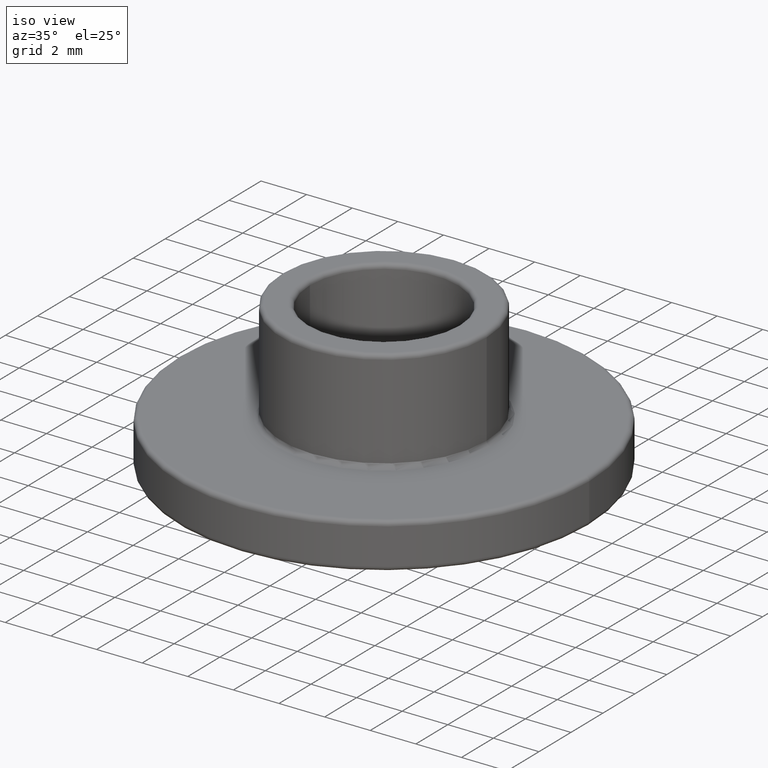
[diagram: clean part render]
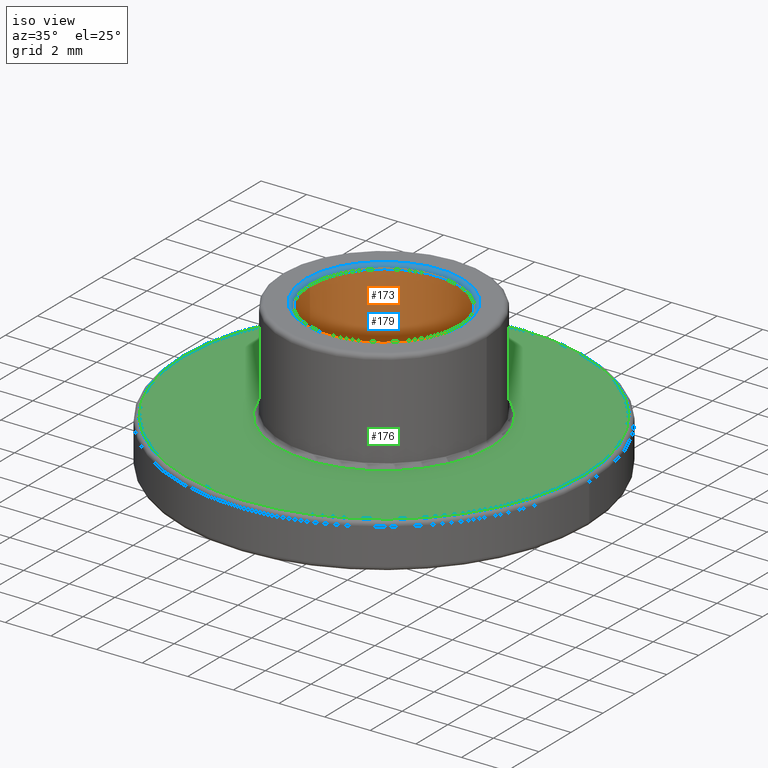
[diagram: same view with three faces highlighted in distinct colors, each labeled with its STEP entity id]
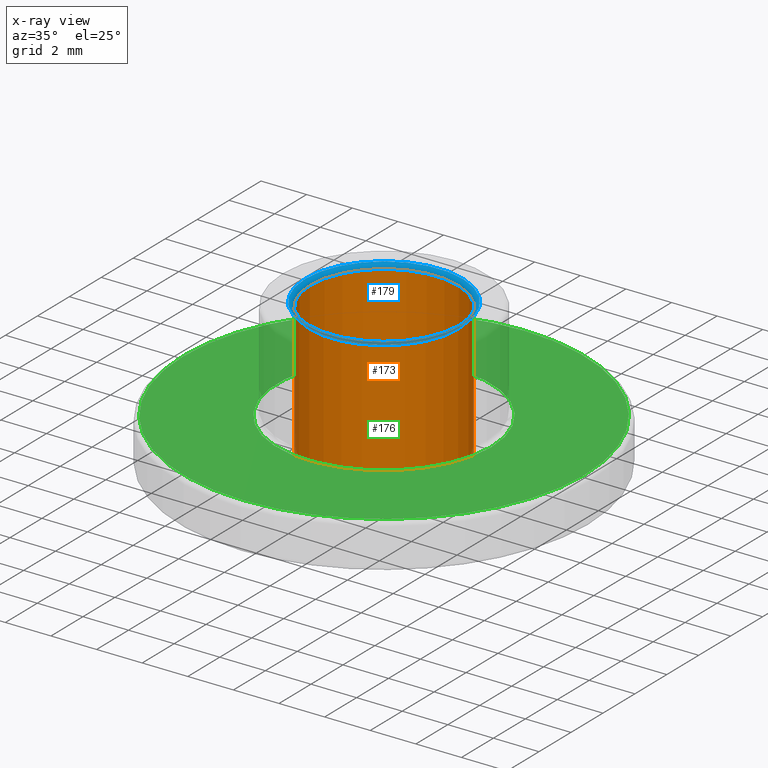
[diagram: x-ray of the same camera — body ghosted, the three highlighted faces saturated]
A machine part, iso view with three faces highlighted in distinct colors.
The next image is the same camera in x-ray (body ghosted, the three faces saturated) — at least one of them is partly hidden behind the body in this view.
Their STEP definitions:

[orange] entity #173 — the highlighted cylindrical surface (bore or boss wall) has radius 3.25 mm, axis along (0, 0, 1).
#15=LINE('',#322,#18);
#18=VECTOR('',#256,3.25);
#21=CYLINDRICAL_SURFACE('',#209,3.25);
#32=FACE_OUTER_BOUND('',#45,.T.);
#45=EDGE_LOOP('',(#123,#124,#125,#126,#127));
#59=CIRCLE('',#206,3.25);
#61=CIRCLE('',#210,3.25);
#62=CIRCLE('',#211,3.25);
#79=VERTEX_POINT('',#311);
#81=VERTEX_POINT('',#318);
#82=VERTEX_POINT('',#319);
#95=EDGE_CURVE('',#79,#79,#59,.T.);
#97=EDGE_CURVE('',#81,#82,#61,.T.);
#98=EDGE_CURVE('',#82,#81,#62,.T.);
#99=EDGE_CURVE('',#82,#79,#15,.T.);
#123=ORIENTED_EDGE('',*,*,#97,.F.);
#124=ORIENTED_EDGE('',*,*,#98,.F.);
#125=ORIENTED_EDGE('',*,*,#99,.T.);
#126=ORIENTED_EDGE('',*,*,#95,.F.);
#127=ORIENTED_EDGE('',*,*,#99,.F.);
#173=ADVANCED_FACE('',(#32),#21,.F.);
#206=AXIS2_PLACEMENT_3D('',#313,#244,#245);
#209=AXIS2_PLACEMENT_3D('',#317,#250,#251);
#210=AXIS2_PLACEMENT_3D('',#320,#252,#253);
#211=AXIS2_PLACEMENT_3D('',#321,#254,#255);
#244=DIRECTION('center_axis',(0.,0.,1.));
#245=DIRECTION('ref_axis',(1.,0.,0.));
#250=DIRECTION('center_axis',(0.,0.,1.));
#251=DIRECTION('ref_axis',(1.,0.,0.));
#252=DIRECTION('center_axis',(0.,0.,-1.));
#253=DIRECTION('ref_axis',(-1.,-1.22464679914735E-16,0.));
#254=DIRECTION('center_axis',(0.,0.,-1.));
#255=DIRECTION('ref_axis',(-1.,-1.22464679914735E-16,0.));
#256=DIRECTION('',(0.,0.,-1.));
#311=CARTESIAN_POINT('',(-3.25,-3.9801020972289E-16,-1.8));
#313=CARTESIAN_POINT('Origin',(0.,0.,-1.8));
#317=CARTESIAN_POINT('Origin',(0.,0.,-21.7726093108393));
#318=CARTESIAN_POINT('',(3.25,0.,4.3));
#319=CARTESIAN_POINT('',(-3.25,-3.9801020972289E-16,4.3));
#320=CARTESIAN_POINT('Origin',(0.,0.,4.3));
#321=CARTESIAN_POINT('Origin',(0.,0.,4.3));
#322=CARTESIAN_POINT('',(-3.25,-3.9801020972289E-16,-21.7726093108393));

[blue] entity #179 — the highlighted toroidal blend (fillet) surface has major radius 3.45 mm and minor (blend) radius 0.2 mm.
#38=FACE_OUTER_BOUND('',#52,.T.);
#52=EDGE_LOOP('',(#147,#148,#149,#150,#151));
#61=CIRCLE('',#210,3.25);
#62=CIRCLE('',#211,3.25);
#72=CIRCLE('',#227,3.45);
#73=CIRCLE('',#228,0.2);
#81=VERTEX_POINT('',#318);
#82=VERTEX_POINT('',#319);
#90=VERTEX_POINT('',#347);
#97=EDGE_CURVE('',#81,#82,#61,.T.);
#98=EDGE_CURVE('',#82,#81,#62,.T.);
#111=EDGE_CURVE('',#90,#90,#72,.T.);
#112=EDGE_CURVE('',#90,#81,#73,.T.);
#147=ORIENTED_EDGE('',*,*,#111,.T.);
#148=ORIENTED_EDGE('',*,*,#112,.T.);
#149=ORIENTED_EDGE('',*,*,#97,.T.);
#150=ORIENTED_EDGE('',*,*,#98,.T.);
#151=ORIENTED_EDGE('',*,*,#112,.F.);
#168=TOROIDAL_SURFACE('',#226,3.45,0.2);
#179=ADVANCED_FACE('',(#38),#168,.T.);
#210=AXIS2_PLACEMENT_3D('',#320,#252,#253);
#211=AXIS2_PLACEMENT_3D('',#321,#254,#255);
#226=AXIS2_PLACEMENT_3D('',#346,#287,#288);
#227=AXIS2_PLACEMENT_3D('',#348,#289,#290);
#228=AXIS2_PLACEMENT_3D('',#349,#291,#292);
#252=DIRECTION('center_axis',(0.,0.,-1.));
#253=DIRECTION('ref_axis',(-1.,-1.22464679914735E-16,0.));
#254=DIRECTION('center_axis',(0.,0.,-1.));
#255=DIRECTION('ref_axis',(-1.,-1.22464679914735E-16,0.));
#287=DIRECTION('center_axis',(0.,0.,-1.));
#288=DIRECTION('ref_axis',(-1.,0.,0.));
#289=DIRECTION('center_axis',(0.,0.,1.));
#290=DIRECTION('ref_axis',(-1.,-1.22464679914735E-16,0.));
#291=DIRECTION('center_axis',(-1.22464679914735E-16,-1.,0.));
#292=DIRECTION('ref_axis',(1.,-1.22464679914735E-16,0.));
#318=CARTESIAN_POINT('',(3.25,0.,4.3));
#319=CARTESIAN_POINT('',(-3.25,-3.9801020972289E-16,4.3));
#320=CARTESIAN_POINT('Origin',(0.,0.,4.3));
#321=CARTESIAN_POINT('Origin',(0.,0.,4.3));
#346=CARTESIAN_POINT('Origin',(0.,0.,4.3));
#347=CARTESIAN_POINT('',(3.45,8.45006291411674E-16,4.5));
#348=CARTESIAN_POINT('Origin',(0.,0.,4.5));
#349=CARTESIAN_POINT('Origin',(3.45,-4.22503145705837E-16,4.3));

[green] entity #176 — the highlighted planar face has unit normal (0, 0, 1).
#25=FACE_BOUND('',#49,.T.);
#28=PLANE('',#219);
#35=FACE_OUTER_BOUND('',#48,.T.);
#48=EDGE_LOOP('',(#137));
#49=EDGE_LOOP('',(#138));
#65=CIRCLE('',#215,4.7);
#68=CIRCLE('',#220,8.8);
#84=VERTEX_POINT('',#326);
#87=VERTEX_POINT('',#336);
#102=EDGE_CURVE('',#84,#84,#65,.T.);
#106=EDGE_CURVE('',#87,#87,#68,.T.);
#137=ORIENTED_EDGE('',*,*,#106,.F.);
#138=ORIENTED_EDGE('',*,*,#102,.F.);
#176=ADVANCED_FACE('',(#35,#25),#28,.T.);
#215=AXIS2_PLACEMENT_3D('',#328,#263,#264);
#219=AXIS2_PLACEMENT_3D('',#335,#272,#273);
#220=AXIS2_PLACEMENT_3D('',#337,#274,#275);
#263=DIRECTION('center_axis',(0.,0.,1.));
#264=DIRECTION('ref_axis',(-1.,0.,0.));
#272=DIRECTION('center_axis',(0.,0.,1.));
#273=DIRECTION('ref_axis',(1.,0.,0.));
#274=DIRECTION('center_axis',(0.,0.,-1.));
#275=DIRECTION('ref_axis',(-1.,0.,0.));
#326=CARTESIAN_POINT('',(4.7,5.75583995599256E-16,0.));
#328=CARTESIAN_POINT('Origin',(0.,0.,0.));
#335=CARTESIAN_POINT('Origin',(-5.03042222760184E-16,2.05596856412066E-16,
0.));
#336=CARTESIAN_POINT('',(8.8,-1.07768918324967E-15,0.));
#337=CARTESIAN_POINT('Origin',(0.,0.,0.));